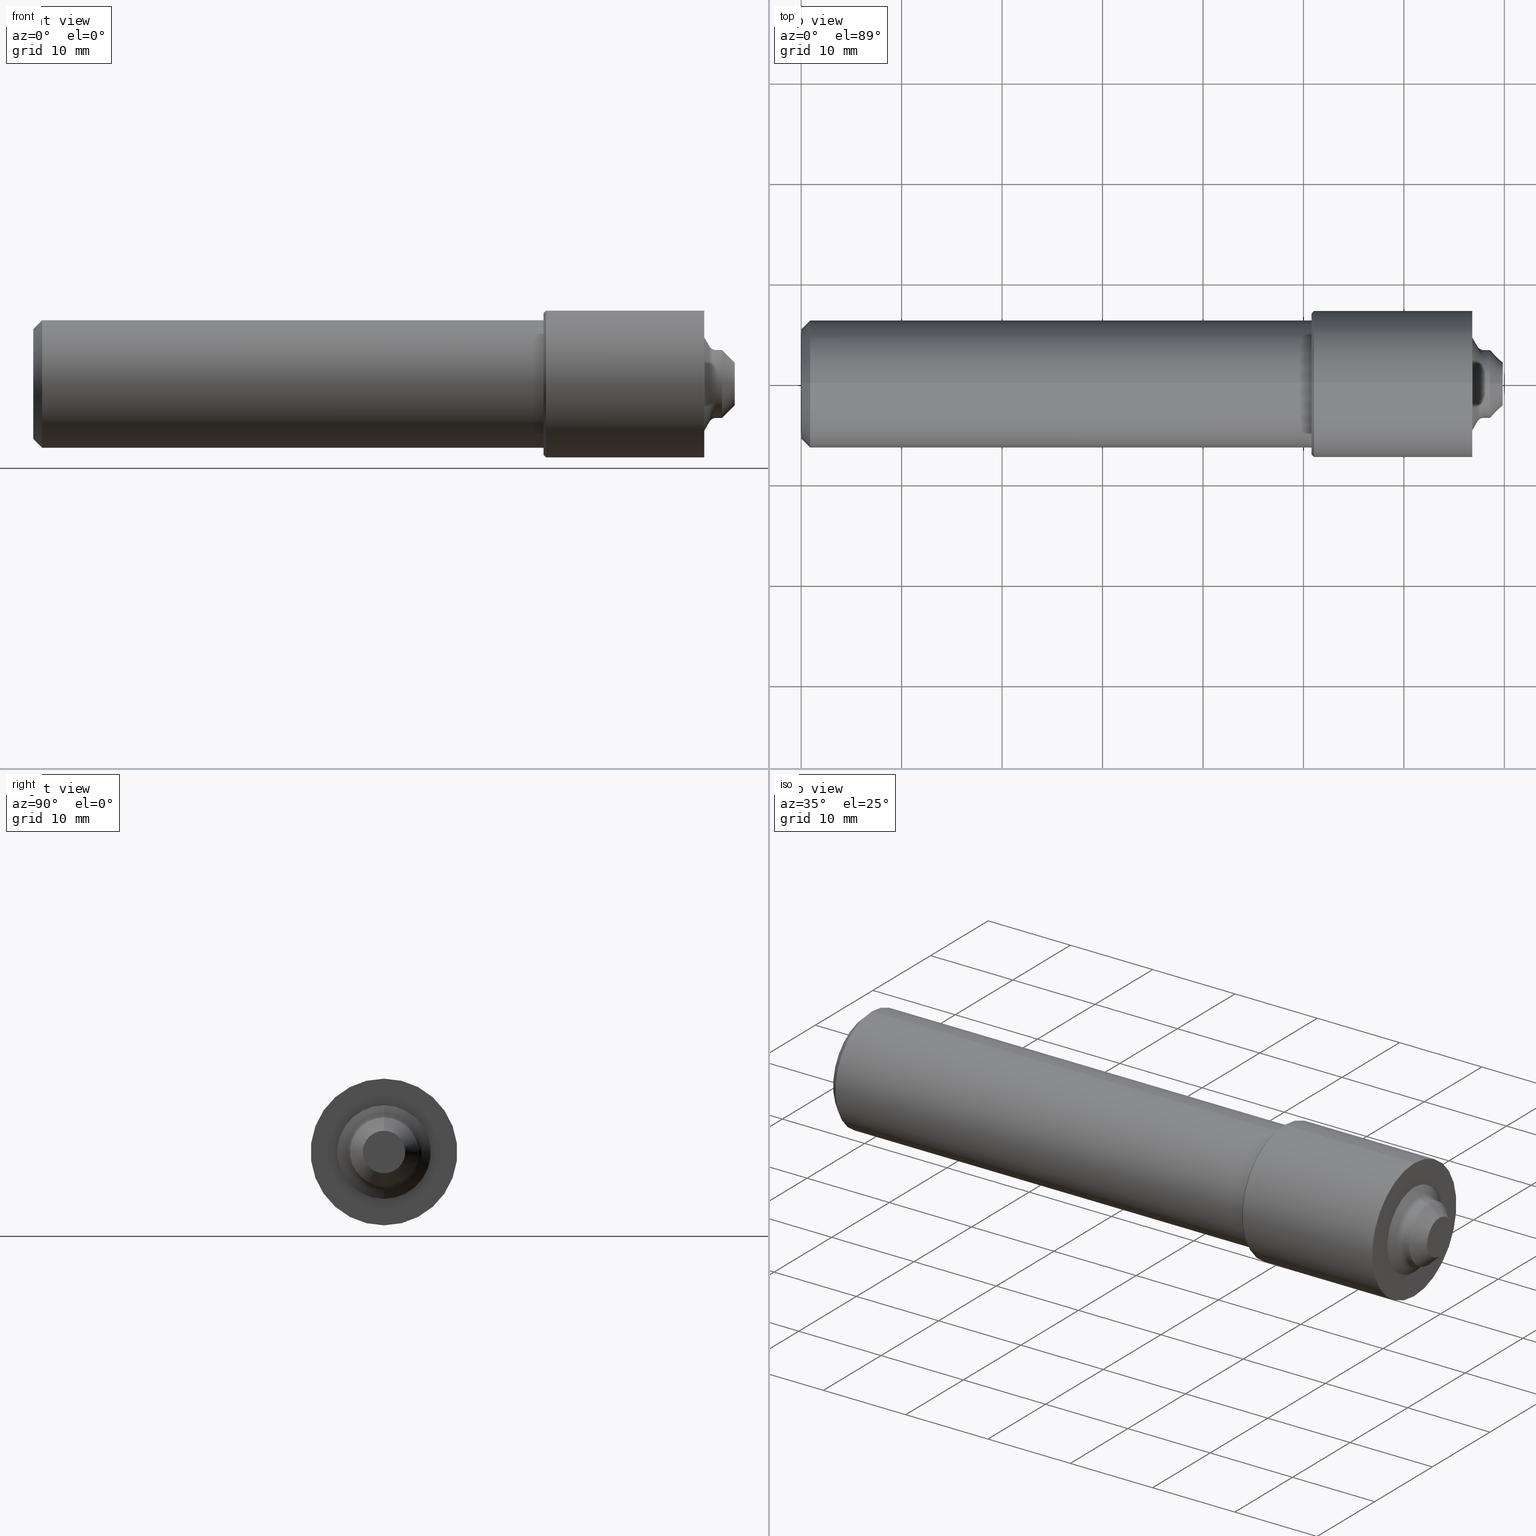
[diagram: canonical four-view strip — front | top / right | iso, engineering-drawing reading convention]
A machine part, canonical four-view strip (front | top / right | iso — engineering-drawing reading convention). The complete STEP part file that produces these views, byte-faithful:
ISO-10303-21;
HEADER;
FILE_DESCRIPTION (( 'STEP AP214' ),
    '1' );
FILE_NAME ('AS5202-01X.STEP',
    '2023-11-10T17:41:54',
    ( '' ),
    ( '' ),
    'SwSTEP 2.0',
    'SolidWorks 2022',
    '' );
FILE_SCHEMA (( 'AUTOMOTIVE_DESIGN' ));
ENDSEC;

DATA;
#1 = FACE_OUTER_BOUND ( 'NONE', #417, .T. ) ;
#2 = ORIENTED_EDGE ( 'NONE', *, *, #241, .F. ) ;
#3 = CARTESIAN_POINT ( 'NONE',  ( 0.000000000000000000, 0.000000000000000000, 0.000000000000000000 ) ) ;
#4 = FACE_OUTER_BOUND ( 'NONE', #8, .T. ) ;
#5 = ORIENTED_EDGE ( 'NONE', *, *, #396, .T. ) ;
#6 = AXIS2_PLACEMENT_3D ( 'NONE', #189, #525, #43 ) ;
#7 = CARTESIAN_POINT ( 'NONE',  ( 0.000000000000000000, 2.847303808017596681E-17, 0.2150000000000001354 ) ) ;
#8 = EDGE_LOOP ( 'NONE', ( #273, #531, #12, #356 ) ) ;
#9 = DIRECTION ( 'NONE',  ( 1.000000000000000000, 0.000000000000000000, 0.000000000000000000 ) ) ;
#10 = EDGE_LOOP ( 'NONE', ( #200, #220, #395, #379 ) ) ;
#11 = FACE_OUTER_BOUND ( 'NONE', #521, .T. ) ;
#12 = ORIENTED_EDGE ( 'NONE', *, *, #45, .F. ) ;
#13 = EDGE_CURVE ( 'NONE', #157, #207, #495, .T. ) ;
#14 = CIRCLE ( 'NONE', #289, 0.2874999999999999778 ) ;
#15 = VERTEX_POINT ( 'NONE', #320 ) ;
#16 = CARTESIAN_POINT ( 'NONE',  ( 0.000000000000000000, 0.000000000000000000, 0.1332500000000000351 ) ) ;
#17 = ORIENTED_EDGE ( 'NONE', *, *, #491, .F. ) ;
#18 = FACE_OUTER_BOUND ( 'NONE', #534, .T. ) ;
#19 = CONICAL_SURFACE ( 'NONE', #291, 0.2874999999999999778, 0.7853981633974500554 ) ;
#20 = VERTEX_POINT ( 'NONE', #494 ) ;
#21 = DIRECTION ( 'NONE',  ( -1.000000000000000000, -0.000000000000000000, -0.000000000000000000 ) ) ;
#22 =( LENGTH_UNIT ( ) NAMED_UNIT ( * ) SI_UNIT ( $, .METRE. ) );
#23 = CARTESIAN_POINT ( 'NONE',  ( 2.675755008833277770, 0.000000000000000000, 0.000000000000000000 ) ) ;
#24 = EDGE_CURVE ( 'NONE', #486, #97, #380, .T. ) ;
#25 = DIRECTION ( 'NONE',  ( 0.000000000000000000, 0.000000000000000000, 1.000000000000000000 ) ) ;
#26 = PRESENTATION_LAYER_ASSIGNMENT (  '', '', ( #471 ) ) ;
#27 = FACE_OUTER_BOUND ( 'NONE', #430, .T. ) ;
#28 = CARTESIAN_POINT ( 'NONE',  ( 2.629999999999999893, 0.000000000000000000, 0.000000000000000000 ) ) ;
#29 = DIRECTION ( 'NONE',  ( -0.000000000000000000, 1.000000000000000000, 1.224646799147353207E-16 ) ) ;
#30 = EDGE_LOOP ( 'NONE', ( #2, #124, #69, #528 ) ) ;
#31 = DIRECTION ( 'NONE',  ( 0.000000000000000000, 0.000000000000000000, 1.000000000000000000 ) ) ;
#32 = ADVANCED_FACE ( 'NONE', ( #27 ), #367, .F. ) ;
#33 = ORIENTED_EDGE ( 'NONE', *, *, #143, .T. ) ;
#34 = CARTESIAN_POINT ( 'NONE',  ( 2.009999999999999787, 0.000000000000000000, 0.000000000000000000 ) ) ;
#35 = DIRECTION ( 'NONE',  ( -1.000000000000000000, -0.000000000000000000, -0.000000000000000000 ) ) ;
#36 = CIRCLE ( 'NONE', #48, 0.2150000000000001354 ) ;
#37 = EDGE_LOOP ( 'NONE', ( #559, #489, #540, #363 ) ) ;
#38 = CONICAL_SURFACE ( 'NONE', #59, 0.08325000000000011557, 0.7853981633974498333 ) ;
#39 = CARTESIAN_POINT ( 'NONE',  ( 2.675755008833277770, 0.000000000000000000, 0.1332500000000000906 ) ) ;
#40 = CARTESIAN_POINT ( 'NONE',  ( 2.000000000000000000, 3.061616997868383018E-17, -0.2500000000000000000 ) ) ;
#41 = MANIFOLD_SOLID_BREP ( 'Body', #350 ) ;
#42 = CARTESIAN_POINT ( 'NONE',  ( 0.000000000000000000, 0.000000000000000000, 0.000000000000000000 ) ) ;
#43 = DIRECTION ( 'NONE',  ( -0.000000000000000000, 0.000000000000000000, 1.000000000000000000 ) ) ;
#44 = DIRECTION ( 'NONE',  ( -1.000000000000000000, -0.000000000000000000, -0.000000000000000000 ) ) ;
#45 = EDGE_CURVE ( 'NONE', #20, #242, #319, .T. ) ;
#46 = PRODUCT_CONTEXT ( 'NONE', #331, 'mechanical' ) ;
#47 = EDGE_LOOP ( 'NONE', ( #446, #256, #401, #95 ) ) ;
#48 = AXIS2_PLACEMENT_3D ( 'NONE', #332, #420, #71 ) ;
#49 = AXIS2_PLACEMENT_3D ( 'NONE', #557, #455, #175 ) ;
#50 = TOROIDAL_SURFACE ( 'NONE', #366, 0.1622500000000000331, 0.02899999999999993902 ) ;
#51 = DIRECTION ( 'NONE',  ( 0.7071067811865462405, 0.000000000000000000, -0.7071067811865486830 ) ) ;
#52 = EDGE_LOOP ( 'NONE', ( #507, #104, #236, #393 ) ) ;
#53 = LINE ( 'NONE', #16, #234 ) ;
#54 = DIRECTION ( 'NONE',  ( -0.4999999999999977240, 1.060575238724908517E-16, -0.8660254037844398178 ) ) ;
#55 = VERTEX_POINT ( 'NONE', #203 ) ;
#56 = ORIENTED_EDGE ( 'NONE', *, *, #416, .F. ) ;
#57 = AXIS2_PLACEMENT_3D ( 'NONE', #295, #558, #387 ) ;
#58 = PRODUCT ( 'AS5202-01X', 'AS5202-01X', '', ( #46 ) ) ;
#59 = AXIS2_PLACEMENT_3D ( 'NONE', #355, #100, #265 ) ;
#60 = VERTEX_POINT ( 'NONE', #543 ) ;
#61 = ADVANCED_FACE ( 'NONE', ( #282 ), #423, .T. ) ;
#62 = SURFACE_SIDE_STYLE ('',( #209 ) ) ;
#63 = PRODUCT_DEFINITION_FORMATION_WITH_SPECIFIED_SOURCE ( 'ANY', '', #58, .NOT_KNOWN. ) ;
#64 = AXIS2_PLACEMENT_3D ( 'NONE', #149, #346, #183 ) ;
#65 = LENGTH_MEASURE_WITH_UNIT ( LENGTH_MEASURE( 0.02539999999999999897 ), #404 );
#66 = DIRECTION ( 'NONE',  ( 1.000000000000000000, 0.000000000000000000, 0.000000000000000000 ) ) ;
#67 = ADVANCED_FACE ( 'NONE', ( #18 ), #204, .T. ) ;
#68 = FACE_OUTER_BOUND ( 'NONE', #354, .T. ) ;
#69 = ORIENTED_EDGE ( 'NONE', *, *, #323, .T. ) ;
#70 = AXIS2_PLACEMENT_3D ( 'NONE', #243, #370, #500 ) ;
#71 = DIRECTION ( 'NONE',  ( 0.000000000000000000, 0.000000000000000000, 1.000000000000000000 ) ) ;
#72 = AXIS2_PLACEMENT_3D ( 'NONE', #454, #66, #408 ) ;
#73 = AXIS2_PLACEMENT_3D ( 'NONE', #335, #466, #251 ) ;
#74 = ORIENTED_EDGE ( 'NONE', *, *, #407, .T. ) ;
#75 = DIMENSIONAL_EXPONENTS ( 1.000000000000000000, 0.000000000000000000, 0.000000000000000000, 0.000000000000000000, 0.000000000000000000, 0.000000000000000000, 0.000000000000000000 ) ;
#76 = DIRECTION ( 'NONE',  ( 0.000000000000000000, 0.000000000000000000, 1.000000000000000000 ) ) ;
#77 = CARTESIAN_POINT ( 'NONE',  ( 0.000000000000000000, 0.000000000000000000, 0.2500000000000000000 ) ) ;
#78 = EDGE_CURVE ( 'NONE', #207, #465, #458, .T. ) ;
#79 =( CONVERSION_BASED_UNIT ( 'INCH', #171 ) LENGTH_UNIT ( ) NAMED_UNIT ( #255 ) );
#80 = VERTEX_POINT ( 'NONE', #83 ) ;
#81 = CARTESIAN_POINT ( 'NONE',  ( 2.700000000000000178, 0.000000000000000000, 0.000000000000000000 ) ) ;
#82 = CARTESIAN_POINT ( 'NONE',  ( 2.009999999999999787, 3.520859547548640070E-17, -0.2874999999999999778 ) ) ;
#83 = CARTESIAN_POINT ( 'NONE',  ( 2.009999999999999787, 0.000000000000000000, 0.2874999999999999778 ) ) ;
#84 = ORIENTED_EDGE ( 'NONE', *, *, #168, .F. ) ;
#85 = DIRECTION ( 'NONE',  ( 0.000000000000000000, 0.000000000000000000, -1.000000000000000000 ) ) ;
#86 = DIRECTION ( 'NONE',  ( -1.000000000000000000, -0.000000000000000000, -0.000000000000000000 ) ) ;
#87 = UNCERTAINTY_MEASURE_WITH_UNIT (LENGTH_MEASURE( 1.000000000000000082E-05 ), #79, 'distance_accuracy_value', 'NONE');
#88 = AXIS2_PLACEMENT_3D ( 'NONE', #261, #21, #160 ) ;
#89 = VECTOR ( 'NONE', #44, 39.37007874015748143 ) ;
#90 = CARTESIAN_POINT ( 'NONE',  ( 0.000000000000000000, 0.000000000000000000, 0.000000000000000000 ) ) ;
#91 = CARTESIAN_POINT ( 'NONE',  ( 2.650640272123529151, 0.000000000000000000, 0.1477500000000001590 ) ) ;
#92 = SURFACE_STYLE_FILL_AREA ( #550 ) ;
#93 = EDGE_CURVE ( 'NONE', #238, #342, #36, .T. ) ;
#94 = CARTESIAN_POINT ( 'NONE',  ( 2.650640272123529151, 1.809415645740216520E-17, -0.1477500000000001590 ) ) ;
#95 = ORIENTED_EDGE ( 'NONE', *, *, #78, .F. ) ;
#96 = DIRECTION ( 'NONE',  ( 0.000000000000000000, 0.000000000000000000, 1.000000000000000000 ) ) ;
#97 = VERTEX_POINT ( 'NONE', #164 ) ;
#98 = CIRCLE ( 'NONE', #312, 0.1477500000000001590 ) ;
#99 = AXIS2_PLACEMENT_3D ( 'NONE', #462, #556, #174 ) ;
#100 = DIRECTION ( 'NONE',  ( -1.000000000000000000, -0.000000000000000000, -0.000000000000000000 ) ) ;
#101 = EDGE_CURVE ( 'NONE', #181, #207, #484, .T. ) ;
#102 = ORIENTED_EDGE ( 'NONE', *, *, #191, .F. ) ;
#103 = FACE_BOUND ( 'NONE', #303, .T. ) ;
#104 = ORIENTED_EDGE ( 'NONE', *, *, #208, .T. ) ;
#105 = DIRECTION ( 'NONE',  ( -1.000000000000000000, -0.000000000000000000, -0.000000000000000000 ) ) ;
#106 = EDGE_LOOP ( 'NONE', ( #400, #398, #140, #17 ) ) ;
#107 = MECHANICAL_DESIGN_GEOMETRIC_PRESENTATION_REPRESENTATION (  '', ( #444 ), #120 ) ;
#108 = VECTOR ( 'NONE', #549, 39.37007874015748854 ) ;
#109 = ORIENTED_EDGE ( 'NONE', *, *, #323, .F. ) ;
#110 = EDGE_CURVE ( 'NONE', #157, #313, #154, .T. ) ;
#111 = CARTESIAN_POINT ( 'NONE',  ( 2.750000000000000000, 0.08325000000000011557, 0.000000000000000000 ) ) ;
#112 = TOROIDAL_SURFACE ( 'NONE', #425, 0.1622500000000000331, 0.02899999999999993902 ) ;
#113 = ADVANCED_FACE ( 'NONE', ( #1 ), #520, .T. ) ;
#114 = DIRECTION ( 'NONE',  ( -1.000000000000000000, -0.000000000000000000, -0.000000000000000000 ) ) ;
#115 = SURFACE_STYLE_USAGE ( .BOTH. , #62 ) ;
#116 = CARTESIAN_POINT ( 'NONE',  ( 2.009999999999999787, 3.520859547548640070E-17, 0.2874999999999999778 ) ) ;
#117 = ORIENTED_EDGE ( 'NONE', *, *, #278, .F. ) ;
#118 = DIRECTION ( 'NONE',  ( -0.7071067811865464625, 8.659560562354947649E-17, -0.7071067811865486830 ) ) ;
#119 = DIRECTION ( 'NONE',  ( -1.000000000000000000, -0.000000000000000000, -0.000000000000000000 ) ) ;
#120 =( GEOMETRIC_REPRESENTATION_CONTEXT ( 3 ) GLOBAL_UNCERTAINTY_ASSIGNED_CONTEXT ( ( #228 ) ) GLOBAL_UNIT_ASSIGNED_CONTEXT ( ( #280, #406, #537 ) ) REPRESENTATION_CONTEXT ( 'NONE', 'WORKASPACE' ) );
#121 = CARTESIAN_POINT ( 'NONE',  ( 2.000000000000000000, 0.000000000000000000, 0.000000000000000000 ) ) ;
#122 = CIRCLE ( 'NONE', #460, 0.08325000000000011557 ) ;
#123 = CIRCLE ( 'NONE', #99, 0.2150000000000001354 ) ;
#124 = ORIENTED_EDGE ( 'NONE', *, *, #135, .F. ) ;
#125 = DIRECTION ( 'NONE',  ( 0.000000000000000000, 0.000000000000000000, 1.000000000000000000 ) ) ;
#126 = FACE_OUTER_BOUND ( 'NONE', #47, .T. ) ;
#127 =( NAMED_UNIT ( * ) PLANE_ANGLE_UNIT ( ) SI_UNIT ( $, .RADIAN. ) );
#128 = ORIENTED_EDGE ( 'NONE', *, *, #294, .F. ) ;
#129 = CARTESIAN_POINT ( 'NONE',  ( 2.650640272123529151, 0.000000000000000000, 0.000000000000000000 ) ) ;
#130 = CARTESIAN_POINT ( 'NONE',  ( 2.700000000000000178, 0.000000000000000000, 0.000000000000000000 ) ) ;
#131 = ORIENTED_EDGE ( 'NONE', *, *, #208, .F. ) ;
#132 = DIRECTION ( 'NONE',  ( -1.000000000000000000, -0.000000000000000000, -0.000000000000000000 ) ) ;
#133 = DIRECTION ( 'NONE',  ( -1.000000000000000000, -0.000000000000000000, -0.000000000000000000 ) ) ;
#134 = DIRECTION ( 'NONE',  ( -1.000000000000000000, -0.000000000000000000, -0.000000000000000000 ) ) ;
#135 = EDGE_CURVE ( 'NONE', #15, #55, #523, .T. ) ;
#136 = VERTEX_POINT ( 'NONE', #82 ) ;
#137 = AXIS2_PLACEMENT_3D ( 'NONE', #217, #414, #385 ) ;
#138 = CARTESIAN_POINT ( 'NONE',  ( 2.675755008833277770, 0.000000000000000000, 0.000000000000000000 ) ) ;
#139 = LINE ( 'NONE', #91, #161 ) ;
#140 = ORIENTED_EDGE ( 'NONE', *, *, #78, .T. ) ;
#141 = DIRECTION ( 'NONE',  ( 0.7071067811865489050, 0.000000000000000000, -0.7071067811865461294 ) ) ;
#142 = VERTEX_POINT ( 'NONE', #411 ) ;
#143 = EDGE_CURVE ( 'NONE', #142, #97, #504, .T. ) ;
#144 = DIRECTION ( 'NONE',  ( 0.7071067811865489050, 8.659560562354915602E-17, 0.7071067811865461294 ) ) ;
#145 = EDGE_LOOP ( 'NONE', ( #478, #358 ) ) ;
#146 = PRESENTATION_LAYER_ASSIGNMENT (  '', '', ( #444 ) ) ;
#147 = AXIS2_PLACEMENT_3D ( 'NONE', #434, #9, #272 ) ;
#148 = AXIS2_PLACEMENT_3D ( 'NONE', #3, #373, #125 ) ;
#149 = CARTESIAN_POINT ( 'NONE',  ( 2.650640272123529151, 0.000000000000000000, 0.000000000000000000 ) ) ;
#150 = ORIENTED_EDGE ( 'NONE', *, *, #316, .F. ) ;
#151 = ORIENTED_EDGE ( 'NONE', *, *, #529, .F. ) ;
#152 = DIRECTION ( 'NONE',  ( 0.000000000000000000, 0.000000000000000000, 1.000000000000000000 ) ) ;
#153 = ADVANCED_FACE ( 'NONE', ( #254 ), #551, .T. ) ;
#154 = CIRCLE ( 'NONE', #360, 0.1332500000000000073 ) ;
#155 = APPLICATION_CONTEXT ( 'automotive_design' ) ;
#156 = CONICAL_SURFACE ( 'NONE', #371, 0.08325000000000011557, 0.7853981633974498333 ) ;
#157 = VERTEX_POINT ( 'NONE', #468 ) ;
#158 = ORIENTED_EDGE ( 'NONE', *, *, #248, .F. ) ;
#159 = ORIENTED_EDGE ( 'NONE', *, *, #479, .F. ) ;
#160 = DIRECTION ( 'NONE',  ( 0.000000000000000000, 0.000000000000000000, 1.000000000000000000 ) ) ;
#161 = VECTOR ( 'NONE', #474, 39.37007874015748143 ) ;
#162 = DIRECTION ( 'NONE',  ( 0.000000000000000000, 0.000000000000000000, -1.000000000000000000 ) ) ;
#163 = LINE ( 'NONE', #116, #108 ) ;
#164 = CARTESIAN_POINT ( 'NONE',  ( 0.03500000000000000333, 0.000000000000000000, 0.2500000000000000000 ) ) ;
#165 = DIRECTION ( 'NONE',  ( 0.000000000000000000, 0.000000000000000000, 1.000000000000000000 ) ) ;
#166 = CARTESIAN_POINT ( 'NONE',  ( 2.629999999999999893, 2.247226876435393398E-17, -0.1834999999999999964 ) ) ;
#167 = CARTESIAN_POINT ( 'NONE',  ( 0.000000000000000000, 0.000000000000000000, 0.000000000000000000 ) ) ;
#168 = EDGE_CURVE ( 'NONE', #465, #207, #351, .T. ) ;
#169 = DIRECTION ( 'NONE',  ( -1.000000000000000000, -0.000000000000000000, -0.000000000000000000 ) ) ;
#170 = CARTESIAN_POINT ( 'NONE',  ( 2.650640272123529151, 1.809415645740214979E-17, -0.1477500000000000757 ) ) ;
#171 = LENGTH_MEASURE_WITH_UNIT ( LENGTH_MEASURE( 0.02539999999999999897 ), #22 );
#172 = CIRCLE ( 'NONE', #271, 0.02899999999999993208 ) ;
#173 = EDGE_LOOP ( 'NONE', ( #322, #102 ) ) ;
#174 = DIRECTION ( 'NONE',  ( 0.000000000000000000, 0.000000000000000000, 1.000000000000000000 ) ) ;
#175 = DIRECTION ( 'NONE',  ( 0.000000000000000000, 0.000000000000000000, 1.000000000000000000 ) ) ;
#176 = APPLICATION_PROTOCOL_DEFINITION ( 'draft international standard', 'automotive_design', 1998, #155 ) ;
#177 = ORIENTED_EDGE ( 'NONE', *, *, #101, .F. ) ;
#178 = DIRECTION ( 'NONE',  ( 0.000000000000000000, -1.000000000000000000, 0.000000000000000000 ) ) ;
#179 = CARTESIAN_POINT ( 'NONE',  ( 2.650640272123529151, 0.000000000000000000, 0.000000000000000000 ) ) ;
#180 = EDGE_CURVE ( 'NONE', #60, #433, #492, .T. ) ;
#181 = VERTEX_POINT ( 'NONE', #170 ) ;
#182 = FACE_OUTER_BOUND ( 'NONE', #325, .T. ) ;
#183 = DIRECTION ( 'NONE',  ( 0.000000000000000000, 0.000000000000000000, 1.000000000000000000 ) ) ;
#184 = VECTOR ( 'NONE', #284, 39.37007874015748143 ) ;
#185 =( GEOMETRIC_REPRESENTATION_CONTEXT ( 3 ) GLOBAL_UNCERTAINTY_ASSIGNED_CONTEXT ( ( #87 ) ) GLOBAL_UNIT_ASSIGNED_CONTEXT ( ( #79, #127, #432 ) ) REPRESENTATION_CONTEXT ( 'NONE', 'WORKASPACE' ) );
#186 = AXIS2_PLACEMENT_3D ( 'NONE', #129, #35, #547 ) ;
#187 = VERTEX_POINT ( 'NONE', #369 ) ;
#188 = LENGTH_MEASURE_WITH_UNIT ( LENGTH_MEASURE( 0.02539999999999999897 ), #441 );
#189 = CARTESIAN_POINT ( 'NONE',  ( 2.629999999999999893, 0.2874999999999999778, 0.000000000000000000 ) ) ;
#190 = ORIENTED_EDGE ( 'NONE', *, *, #24, .F. ) ;
#191 = EDGE_CURVE ( 'NONE', #347, #142, #326, .T. ) ;
#192 = LINE ( 'NONE', #527, #277 ) ;
#193 = PRODUCT_DEFINITION_SHAPE ( 'NONE', 'NONE',  #554 ) ;
#194 = ORIENTED_EDGE ( 'NONE', *, *, #135, .T. ) ;
#195 = LINE ( 'NONE', #315, #263 ) ;
#196 = ORIENTED_EDGE ( 'NONE', *, *, #328, .F. ) ;
#197 = AXIS2_PLACEMENT_3D ( 'NONE', #246, #403, #162 ) ;
#198 = VECTOR ( 'NONE', #119, 39.37007874015748143 ) ;
#199 = CIRCLE ( 'NONE', #137, 0.1477500000000001590 ) ;
#200 = ORIENTED_EDGE ( 'NONE', *, *, #375, .F. ) ;
#201 = ADVANCED_FACE ( 'NONE', ( #499 ), #156, .T. ) ;
#202 = ORIENTED_EDGE ( 'NONE', *, *, #353, .T. ) ;
#203 = CARTESIAN_POINT ( 'NONE',  ( 2.000000000000000000, 3.459627207591272545E-17, 0.2775000000000000244 ) ) ;
#204 = CONICAL_SURFACE ( 'NONE', #72, 0.2500000000000000000, 0.7853981633974463916 ) ;
#205 = AXIS2_PLACEMENT_3D ( 'NONE', #429, #267, #359 ) ;
#206 = AXIS2_PLACEMENT_3D ( 'NONE', #512, #345, #76 ) ;
#207 = VERTEX_POINT ( 'NONE', #297 ) ;
#208 = EDGE_CURVE ( 'NONE', #187, #442, #340, .T. ) ;
#209 = SURFACE_STYLE_FILL_AREA ( #497 ) ;
#210 = DIRECTION ( 'NONE',  ( 0.000000000000000000, 0.000000000000000000, 1.000000000000000000 ) ) ;
#211 = DIRECTION ( 'NONE',  ( -1.000000000000000000, -0.000000000000000000, -0.000000000000000000 ) ) ;
#212 = AXIS2_PLACEMENT_3D ( 'NONE', #111, #279, #448 ) ;
#213 = CARTESIAN_POINT ( 'NONE',  ( 2.750000000000000000, 0.000000000000000000, 0.000000000000000000 ) ) ;
#214 = DIRECTION ( 'NONE',  ( 0.000000000000000000, 0.000000000000000000, -1.000000000000000000 ) ) ;
#215 = ADVANCED_FACE ( 'NONE', ( #68 ), #286, .T. ) ;
#216 = DIRECTION ( 'NONE',  ( -1.000000000000000000, -0.000000000000000000, -0.000000000000000000 ) ) ;
#217 = CARTESIAN_POINT ( 'NONE',  ( 2.650640272123529151, 0.000000000000000000, 0.000000000000000000 ) ) ;
#218 = CARTESIAN_POINT ( 'NONE',  ( 2.629999999999999893, 0.000000000000000000, 0.000000000000000000 ) ) ;
#219 = PRESENTATION_STYLE_ASSIGNMENT (( #421 ) ) ;
#220 = ORIENTED_EDGE ( 'NONE', *, *, #436, .T. ) ;
#221 = DIRECTION ( 'NONE',  ( 0.000000000000000000, 0.000000000000000000, 1.000000000000000000 ) ) ;
#222 = CARTESIAN_POINT ( 'NONE',  ( 0.000000000000000000, 0.000000000000000000, 0.000000000000000000 ) ) ;
#223 = AXIS2_PLACEMENT_3D ( 'NONE', #90, #410, #288 ) ;
#224 = EDGE_CURVE ( 'NONE', #442, #313, #247, .T. ) ;
#225 = CARTESIAN_POINT ( 'NONE',  ( 2.675755008833277770, 0.000000000000000000, 0.000000000000000000 ) ) ;
#226 = DIRECTION ( 'NONE',  ( -1.000000000000000000, -0.000000000000000000, -0.000000000000000000 ) ) ;
#227 = DIMENSIONAL_EXPONENTS ( 1.000000000000000000, 0.000000000000000000, 0.000000000000000000, 0.000000000000000000, 0.000000000000000000, 0.000000000000000000, 0.000000000000000000 ) ;
#228 = UNCERTAINTY_MEASURE_WITH_UNIT (LENGTH_MEASURE( 1.000000000000000082E-05 ), #280, 'distance_accuracy_value', 'NONE');
#229 = DIRECTION ( 'NONE',  ( 1.000000000000000000, 0.000000000000000000, 0.000000000000000000 ) ) ;
#230 = DIRECTION ( 'NONE',  ( -1.000000000000000000, -0.000000000000000000, -0.000000000000000000 ) ) ;
#231 = CARTESIAN_POINT ( 'NONE',  ( 2.700000000000000178, 0.000000000000000000, 0.1332500000000000073 ) ) ;
#232 = AXIS2_PLACEMENT_3D ( 'NONE', #392, #488, #439 ) ;
#233 = EDGE_LOOP ( 'NONE', ( #117, #266, #438, #196 ) ) ;
#234 = VECTOR ( 'NONE', #105, 39.37007874015748143 ) ;
#235 = FACE_OUTER_BOUND ( 'NONE', #145, .T. ) ;
#236 = ORIENTED_EDGE ( 'NONE', *, *, #224, .T. ) ;
#237 = DIRECTION ( 'NONE',  ( 0.000000000000000000, 0.000000000000000000, 1.000000000000000000 ) ) ;
#238 = VERTEX_POINT ( 'NONE', #383 ) ;
#239 = ADVANCED_BREP_SHAPE_REPRESENTATION ( 'AS5202-01X', ( #41, #57 ), #384 ) ;
#240 = ORIENTED_EDGE ( 'NONE', *, *, #168, .T. ) ;
#241 = EDGE_CURVE ( 'NONE', #55, #80, #163, .T. ) ;
#242 = VERTEX_POINT ( 'NONE', #166 ) ;
#243 = CARTESIAN_POINT ( 'NONE',  ( 2.629999999999999893, 0.000000000000000000, 0.000000000000000000 ) ) ;
#244 = ADVANCED_FACE ( 'NONE', ( #330 ), #374, .T. ) ;
#245 = PRESENTATION_STYLE_ASSIGNMENT (( #115 ) ) ;
#246 = CARTESIAN_POINT ( 'NONE',  ( 0.03500000000000000333, 0.000000000000000000, 0.000000000000000000 ) ) ;
#247 = LINE ( 'NONE', #511, #553 ) ;
#248 = EDGE_CURVE ( 'NONE', #442, #187, #122, .T. ) ;
#249 = CYLINDRICAL_SURFACE ( 'NONE', #223, 0.1332500000000000351 ) ;
#250 = AXIS2_PLACEMENT_3D ( 'NONE', #28, #513, #210 ) ;
#251 = DIRECTION ( 'NONE',  ( 0.000000000000000000, 0.000000000000000000, 1.000000000000000000 ) ) ;
#252 = AXIS2_PLACEMENT_3D ( 'NONE', #222, #519, #96 ) ;
#253 = FACE_OUTER_BOUND ( 'NONE', #391, .T. ) ;
#254 = FACE_OUTER_BOUND ( 'NONE', #10, .T. ) ;
#255 = DIMENSIONAL_EXPONENTS ( 1.000000000000000000, 0.000000000000000000, 0.000000000000000000, 0.000000000000000000, 0.000000000000000000, 0.000000000000000000, 0.000000000000000000 ) ;
#256 = ORIENTED_EDGE ( 'NONE', *, *, #110, .T. ) ;
#257 = DIRECTION ( 'NONE',  ( -1.000000000000000000, -0.000000000000000000, -0.000000000000000000 ) ) ;
#258 = DIRECTION ( 'NONE',  ( -1.000000000000000000, -0.000000000000000000, -0.000000000000000000 ) ) ;
#259 = EDGE_CURVE ( 'NONE', #433, #60, #498, .T. ) ;
#260 = VERTEX_POINT ( 'NONE', #344 ) ;
#261 = CARTESIAN_POINT ( 'NONE',  ( 2.000000000000000000, 0.000000000000000000, 0.000000000000000000 ) ) ;
#262 = AXIS2_PLACEMENT_3D ( 'NONE', #545, #86, #31 ) ;
#263 = VECTOR ( 'NONE', #51, 39.37007874015748854 ) ;
#264 = CARTESIAN_POINT ( 'NONE',  ( 2.629999999999999893, 0.000000000000000000, 0.000000000000000000 ) ) ;
#265 = DIRECTION ( 'NONE',  ( 0.000000000000000000, 0.000000000000000000, 1.000000000000000000 ) ) ;
#266 = ORIENTED_EDGE ( 'NONE', *, *, #180, .T. ) ;
#267 = DIRECTION ( 'NONE',  ( -1.000000000000000000, -0.000000000000000000, -0.000000000000000000 ) ) ;
#268 = ADVANCED_FACE ( 'NONE', ( #126 ), #419, .T. ) ;
#269 = VECTOR ( 'NONE', #230, 39.37007874015748143 ) ;
#270 = EDGE_LOOP ( 'NONE', ( #310, #470, #306, #109 ) ) ;
#271 = AXIS2_PLACEMENT_3D ( 'NONE', #418, #178, #85 ) ;
#272 = DIRECTION ( 'NONE',  ( 0.000000000000000000, 0.000000000000000000, -1.000000000000000000 ) ) ;
#273 = ORIENTED_EDGE ( 'NONE', *, *, #294, .T. ) ;
#274 = ORIENTED_EDGE ( 'NONE', *, *, #353, .F. ) ;
#275 = ADVANCED_FACE ( 'NONE', ( #532 ), #38, .T. ) ;
#276 = ORIENTED_EDGE ( 'NONE', *, *, #316, .T. ) ;
#277 = VECTOR ( 'NONE', #141, 39.37007874015748143 ) ;
#278 = EDGE_CURVE ( 'NONE', #60, #136, #542, .T. ) ;
#279 = DIRECTION ( 'NONE',  ( -1.000000000000000000, 0.000000000000000000, -0.000000000000000000 ) ) ;
#280 =( CONVERSION_BASED_UNIT ( 'INCH', #65 ) LENGTH_UNIT ( ) NAMED_UNIT ( #227 ) );
#281 = CIRCLE ( 'NONE', #327, 0.1834999999999999964 ) ;
#282 = FACE_OUTER_BOUND ( 'NONE', #37, .T. ) ;
#283 = DIRECTION ( 'NONE',  ( 0.000000000000000000, 0.000000000000000000, 1.000000000000000000 ) ) ;
#284 = DIRECTION ( 'NONE',  ( -1.000000000000000000, -0.000000000000000000, -0.000000000000000000 ) ) ;
#285 = ADVANCED_FACE ( 'NONE', ( #4 ), #399, .T. ) ;
#286 = CYLINDRICAL_SURFACE ( 'NONE', #73, 0.2500000000000000000 ) ;
#287 = EDGE_LOOP ( 'NONE', ( #481, #362 ) ) ;
#288 = DIRECTION ( 'NONE',  ( 0.000000000000000000, 0.000000000000000000, 1.000000000000000000 ) ) ;
#289 = AXIS2_PLACEMENT_3D ( 'NONE', #311, #226, #237 ) ;
#290 = DIRECTION ( 'NONE',  ( 0.000000000000000000, 0.000000000000000000, 1.000000000000000000 ) ) ;
#291 = AXIS2_PLACEMENT_3D ( 'NONE', #34, #424, #381 ) ;
#292 = DIRECTION ( 'NONE',  ( -1.000000000000000000, -0.000000000000000000, -0.000000000000000000 ) ) ;
#293 = DIRECTION ( 'NONE',  ( -1.000000000000000000, -0.000000000000000000, -0.000000000000000000 ) ) ;
#294 = EDGE_CURVE ( 'NONE', #260, #181, #98, .T. ) ;
#295 = CARTESIAN_POINT ( 'NONE',  ( 0.000000000000000000, 0.000000000000000000, 0.000000000000000000 ) ) ;
#296 = CARTESIAN_POINT ( 'NONE',  ( 2.629999999999999893, 0.000000000000000000, 0.2874999999999999778 ) ) ;
#297 = CARTESIAN_POINT ( 'NONE',  ( 2.675755008833277770, 1.631841859863849466E-17, -0.1332500000000000906 ) ) ;
#298 = DIRECTION ( 'NONE',  ( 0.000000000000000000, 0.000000000000000000, 1.000000000000000000 ) ) ;
#299 = ORIENTED_EDGE ( 'NONE', *, *, #546, .F. ) ;
#300 = DIRECTION ( 'NONE',  ( 0.000000000000000000, 0.000000000000000000, 1.000000000000000000 ) ) ;
#301 = FACE_OUTER_BOUND ( 'NONE', #30, .T. ) ;
#302 = CONICAL_SURFACE ( 'NONE', #147, 0.2874999999999999778, 0.7853981633974500554 ) ;
#303 = EDGE_LOOP ( 'NONE', ( #526, #74 ) ) ;
#304 = FACE_OUTER_BOUND ( 'NONE', #270, .T. ) ;
#305 = DIRECTION ( 'NONE',  ( -1.000000000000000000, -0.000000000000000000, -0.000000000000000000 ) ) ;
#306 = ORIENTED_EDGE ( 'NONE', *, *, #541, .T. ) ;
#307 = EDGE_CURVE ( 'NONE', #238, #486, #192, .T. ) ;
#308 = LINE ( 'NONE', #397, #269 ) ;
#309 = SURFACE_SIDE_STYLE ('',( #92 ) ) ;
#310 = ORIENTED_EDGE ( 'NONE', *, *, #535, .F. ) ;
#311 = CARTESIAN_POINT ( 'NONE',  ( 2.009999999999999787, 0.000000000000000000, 0.000000000000000000 ) ) ;
#312 = AXIS2_PLACEMENT_3D ( 'NONE', #179, #133, #349 ) ;
#313 = VERTEX_POINT ( 'NONE', #231 ) ;
#314 =( NAMED_UNIT ( * ) PLANE_ANGLE_UNIT ( ) SI_UNIT ( $, .RADIAN. ) );
#315 = CARTESIAN_POINT ( 'NONE',  ( 2.009999999999999787, 0.000000000000000000, -0.2874999999999999778 ) ) ;
#316 = EDGE_CURVE ( 'NONE', #97, #486, #382, .T. ) ;
#317 = ORIENTED_EDGE ( 'NONE', *, *, #248, .T. ) ;
#318 = ORIENTED_EDGE ( 'NONE', *, *, #338, .T. ) ;
#319 = CIRCLE ( 'NONE', #70, 0.1834999999999999964 ) ;
#320 = CARTESIAN_POINT ( 'NONE',  ( 2.000000000000000000, 0.000000000000000000, -0.2775000000000000244 ) ) ;
#321 = COLOUR_RGB ( '',0.7529411764705882248, 0.7529411764705882248, 0.7529411764705882248 ) ;
#322 = ORIENTED_EDGE ( 'NONE', *, *, #338, .F. ) ;
#323 = EDGE_CURVE ( 'NONE', #15, #136, #195, .T. ) ;
#324 = EDGE_LOOP ( 'NONE', ( #490, #336, #376, #159 ) ) ;
#325 = EDGE_LOOP ( 'NONE', ( #177, #128, #422, #240 ) ) ;
#326 = CIRCLE ( 'NONE', #88, 0.2500000000000000000 ) ;
#327 = AXIS2_PLACEMENT_3D ( 'NONE', #264, #305, #477 ) ;
#328 = EDGE_CURVE ( 'NONE', #136, #80, #14, .T. ) ;
#329 = DIRECTION ( 'NONE',  ( -1.000000000000000000, -0.000000000000000000, -0.000000000000000000 ) ) ;
#330 = FACE_OUTER_BOUND ( 'NONE', #324, .T. ) ;
#331 = APPLICATION_CONTEXT ( 'automotive_design' ) ;
#332 = CARTESIAN_POINT ( 'NONE',  ( 0.000000000000000000, 0.000000000000000000, 0.000000000000000000 ) ) ;
#333 = PRODUCT_DEFINITION_CONTEXT ( 'detailed design', #155, 'design' ) ;
#334 = CARTESIAN_POINT ( 'NONE',  ( 0.000000000000000000, 0.000000000000000000, 0.2874999999999999778 ) ) ;
#335 = CARTESIAN_POINT ( 'NONE',  ( 0.000000000000000000, 0.000000000000000000, 0.000000000000000000 ) ) ;
#336 = ORIENTED_EDGE ( 'NONE', *, *, #278, .T. ) ;
#337 = MECHANICAL_DESIGN_GEOMETRIC_PRESENTATION_REPRESENTATION (  '', ( #471 ), #185 ) ;
#338 = EDGE_CURVE ( 'NONE', #142, #347, #508, .T. ) ;
#339 = AXIS2_PLACEMENT_3D ( 'NONE', #412, #29, #515 ) ;
#340 = CIRCLE ( 'NONE', #49, 0.08325000000000011557 ) ;
#341 = DIRECTION ( 'NONE',  ( 0.000000000000000000, 0.000000000000000000, 1.000000000000000000 ) ) ;
#342 = VERTEX_POINT ( 'NONE', #7 ) ;
#343 = FACE_OUTER_BOUND ( 'NONE', #233, .T. ) ;
#344 = CARTESIAN_POINT ( 'NONE',  ( 2.650640272123529151, 0.000000000000000000, 0.1477500000000000757 ) ) ;
#345 = DIRECTION ( 'NONE',  ( -1.000000000000000000, -0.000000000000000000, -0.000000000000000000 ) ) ;
#346 = DIRECTION ( 'NONE',  ( -1.000000000000000000, -0.000000000000000000, -0.000000000000000000 ) ) ;
#347 = VERTEX_POINT ( 'NONE', #40 ) ;
#348 = DIRECTION ( 'NONE',  ( 0.000000000000000000, 0.000000000000000000, 1.000000000000000000 ) ) ;
#349 = DIRECTION ( 'NONE',  ( 0.000000000000000000, 0.000000000000000000, 1.000000000000000000 ) ) ;
#350 = CLOSED_SHELL ( 'NONE', ( #67, #215, #496, #244, #285, #469, #514, #201, #32, #275, #268, #427, #153, #365, #461, #390, #368, #113, #61, #447 ) ) ;
#351 = CIRCLE ( 'NONE', #262, 0.1332500000000000906 ) ;
#352 = AXIS2_PLACEMENT_3D ( 'NONE', #463, #258, #25 ) ;
#353 = EDGE_CURVE ( 'NONE', #347, #486, #308, .T. ) ;
#354 = EDGE_LOOP ( 'NONE', ( #318, #202, #150, #413 ) ) ;
#355 = CARTESIAN_POINT ( 'NONE',  ( 2.750000000000000000, 0.000000000000000000, 0.000000000000000000 ) ) ;
#356 = ORIENTED_EDGE ( 'NONE', *, *, #402, .F. ) ;
#357 = CARTESIAN_POINT ( 'NONE',  ( 0.03500000000000000333, 3.061616997868383018E-17, 0.2500000000000000000 ) ) ;
#358 = ORIENTED_EDGE ( 'NONE', *, *, #180, .F. ) ;
#359 = DIRECTION ( 'NONE',  ( 0.000000000000000000, 0.000000000000000000, 1.000000000000000000 ) ) ;
#360 = AXIS2_PLACEMENT_3D ( 'NONE', #130, #216, #298 ) ;
#361 = CIRCLE ( 'NONE', #493, 0.1332500000000000073 ) ;
#362 = ORIENTED_EDGE ( 'NONE', *, *, #529, .T. ) ;
#363 = ORIENTED_EDGE ( 'NONE', *, *, #24, .T. ) ;
#364 = CARTESIAN_POINT ( 'NONE',  ( 0.03500000000000000333, 0.000000000000000000, 0.000000000000000000 ) ) ;
#365 = ADVANCED_FACE ( 'NONE', ( #235, #103 ), #426, .F. ) ;
#366 = AXIS2_PLACEMENT_3D ( 'NONE', #138, #560, #165 ) ;
#367 = PLANE ( 'NONE',  #212 ) ;
#368 = ADVANCED_FACE ( 'NONE', ( #530, #11 ), #480, .F. ) ;
#369 = CARTESIAN_POINT ( 'NONE',  ( 2.750000000000000000, 1.325680160077010609E-17, -0.08325000000000011557 ) ) ;
#370 = DIRECTION ( 'NONE',  ( -1.000000000000000000, -0.000000000000000000, -0.000000000000000000 ) ) ;
#371 = AXIS2_PLACEMENT_3D ( 'NONE', #213, #114, #283 ) ;
#372 = DIRECTION ( 'NONE',  ( -1.000000000000000000, -0.000000000000000000, -0.000000000000000000 ) ) ;
#373 = DIRECTION ( 'NONE',  ( -1.000000000000000000, -0.000000000000000000, -0.000000000000000000 ) ) ;
#374 = CYLINDRICAL_SURFACE ( 'NONE', #352, 0.2874999999999999778 ) ;
#375 = EDGE_CURVE ( 'NONE', #181, #242, #561, .T. ) ;
#376 = ORIENTED_EDGE ( 'NONE', *, *, #541, .F. ) ;
#377 = FACE_OUTER_BOUND ( 'NONE', #287, .T. ) ;
#378 = DIRECTION ( 'NONE',  ( -1.000000000000000000, -0.000000000000000000, -0.000000000000000000 ) ) ;
#379 = ORIENTED_EDGE ( 'NONE', *, *, #407, .F. ) ;
#380 = CIRCLE ( 'NONE', #522, 0.2500000000000000000 ) ;
#381 = DIRECTION ( 'NONE',  ( 0.000000000000000000, 0.000000000000000000, -1.000000000000000000 ) ) ;
#382 = CIRCLE ( 'NONE', #205, 0.2500000000000000000 ) ;
#383 = CARTESIAN_POINT ( 'NONE',  ( 0.000000000000000000, 0.000000000000000000, -0.2150000000000001354 ) ) ;
#384 =( GEOMETRIC_REPRESENTATION_CONTEXT ( 3 ) GLOBAL_UNCERTAINTY_ASSIGNED_CONTEXT ( ( #516 ) ) GLOBAL_UNIT_ASSIGNED_CONTEXT ( ( #482, #314, #487 ) ) REPRESENTATION_CONTEXT ( 'NONE', 'WORKASPACE' ) );
#385 = DIRECTION ( 'NONE',  ( 0.000000000000000000, 0.000000000000000000, 1.000000000000000000 ) ) ;
#386 = DIRECTION ( 'NONE',  ( 0.000000000000000000, 0.000000000000000000, -1.000000000000000000 ) ) ;
#387 = DIRECTION ( 'NONE',  ( 1.000000000000000000, 0.000000000000000000, 0.000000000000000000 ) ) ;
#388 = CYLINDRICAL_SURFACE ( 'NONE', #148, 0.2874999999999999778 ) ;
#389 = LINE ( 'NONE', #357, #453 ) ;
#390 = ADVANCED_FACE ( 'NONE', ( #301 ), #302, .T. ) ;
#391 = EDGE_LOOP ( 'NONE', ( #440, #456, #84, #299 ) ) ;
#392 = CARTESIAN_POINT ( 'NONE',  ( 2.000000000000000000, 0.000000000000000000, 0.000000000000000000 ) ) ;
#393 = ORIENTED_EDGE ( 'NONE', *, *, #110, .F. ) ;
#394 = DIRECTION ( 'NONE',  ( 1.000000000000000000, 0.000000000000000000, 0.000000000000000000 ) ) ;
#395 = ORIENTED_EDGE ( 'NONE', *, *, #402, .T. ) ;
#396 = EDGE_CURVE ( 'NONE', #342, #97, #389, .T. ) ;
#397 = CARTESIAN_POINT ( 'NONE',  ( 0.000000000000000000, 3.061616997868383018E-17, -0.2500000000000000000 ) ) ;
#398 = ORIENTED_EDGE ( 'NONE', *, *, #101, .T. ) ;
#399 = CONICAL_SURFACE ( 'NONE', #64, 0.1477500000000001590, 1.047197551196600296 ) ;
#400 = ORIENTED_EDGE ( 'NONE', *, *, #436, .F. ) ;
#401 = ORIENTED_EDGE ( 'NONE', *, *, #546, .T. ) ;
#402 = EDGE_CURVE ( 'NONE', #260, #20, #139, .T. ) ;
#403 = DIRECTION ( 'NONE',  ( 1.000000000000000000, 0.000000000000000000, 0.000000000000000000 ) ) ;
#404 =( LENGTH_UNIT ( ) NAMED_UNIT ( * ) SI_UNIT ( $, .METRE. ) );
#405 = AXIS2_PLACEMENT_3D ( 'NONE', #121, #292, #457 ) ;
#406 =( NAMED_UNIT ( * ) PLANE_ANGLE_UNIT ( ) SI_UNIT ( $, .RADIAN. ) );
#407 = EDGE_CURVE ( 'NONE', #242, #20, #281, .T. ) ;
#408 = DIRECTION ( 'NONE',  ( 0.000000000000000000, 0.000000000000000000, -1.000000000000000000 ) ) ;
#409 = DIRECTION ( 'NONE',  ( -0.7071067811865464625, 0.000000000000000000, 0.7071067811865486830 ) ) ;
#410 = DIRECTION ( 'NONE',  ( -1.000000000000000000, -0.000000000000000000, -0.000000000000000000 ) ) ;
#411 = CARTESIAN_POINT ( 'NONE',  ( 2.000000000000000000, 0.000000000000000000, 0.2500000000000000000 ) ) ;
#412 = CARTESIAN_POINT ( 'NONE',  ( 2.675755008833277770, 1.986989431616580801E-17, -0.1622500000000000331 ) ) ;
#413 = ORIENTED_EDGE ( 'NONE', *, *, #143, .F. ) ;
#414 = DIRECTION ( 'NONE',  ( -1.000000000000000000, -0.000000000000000000, -0.000000000000000000 ) ) ;
#415 = FILL_AREA_STYLE_COLOUR ( '', #506 ) ;
#416 = EDGE_CURVE ( 'NONE', #313, #157, #361, .T. ) ;
#417 = EDGE_LOOP ( 'NONE', ( #274, #548, #33, #190 ) ) ;
#418 = CARTESIAN_POINT ( 'NONE',  ( 2.675755008833277770, 0.000000000000000000, 0.1622500000000000331 ) ) ;
#419 = CYLINDRICAL_SURFACE ( 'NONE', #252, 0.1332500000000000351 ) ;
#420 = DIRECTION ( 'NONE',  ( -1.000000000000000000, -0.000000000000000000, -0.000000000000000000 ) ) ;
#421 = SURFACE_STYLE_USAGE ( .BOTH. , #309 ) ;
#422 = ORIENTED_EDGE ( 'NONE', *, *, #491, .T. ) ;
#423 = CONICAL_SURFACE ( 'NONE', #197, 0.2500000000000000000, 0.7853981633974463916 ) ;
#424 = DIRECTION ( 'NONE',  ( 1.000000000000000000, 0.000000000000000000, 0.000000000000000000 ) ) ;
#425 = AXIS2_PLACEMENT_3D ( 'NONE', #225, #257, #348 ) ;
#426 = PLANE ( 'NONE',  #6 ) ;
#427 = ADVANCED_FACE ( 'NONE', ( #182 ), #112, .F. ) ;
#428 = CARTESIAN_POINT ( 'NONE',  ( 0.03500000000000000333, 3.061616997868383018E-17, -0.2500000000000000000 ) ) ;
#429 = CARTESIAN_POINT ( 'NONE',  ( 0.03500000000000000333, 0.000000000000000000, 0.000000000000000000 ) ) ;
#430 = EDGE_LOOP ( 'NONE', ( #158, #131 ) ) ;
#431 = CARTESIAN_POINT ( 'NONE',  ( 0.000000000000000000, 3.520859547548640070E-17, -0.2874999999999999778 ) ) ;
#432 =( NAMED_UNIT ( * ) SI_UNIT ( $, .STERADIAN. ) SOLID_ANGLE_UNIT ( ) );
#433 = VERTEX_POINT ( 'NONE', #296 ) ;
#434 = CARTESIAN_POINT ( 'NONE',  ( 2.009999999999999787, 0.000000000000000000, 0.000000000000000000 ) ) ;
#435 = AXIS2_PLACEMENT_3D ( 'NONE', #218, #378, #341 ) ;
#436 = EDGE_CURVE ( 'NONE', #181, #260, #199, .T. ) ;
#437 = VECTOR ( 'NONE', #293, 39.37007874015748143 ) ;
#438 = ORIENTED_EDGE ( 'NONE', *, *, #479, .T. ) ;
#439 = DIRECTION ( 'NONE',  ( 0.000000000000000000, 0.000000000000000000, 1.000000000000000000 ) ) ;
#440 = ORIENTED_EDGE ( 'NONE', *, *, #416, .T. ) ;
#441 =( LENGTH_UNIT ( ) NAMED_UNIT ( * ) SI_UNIT ( $, .METRE. ) );
#442 = VERTEX_POINT ( 'NONE', #510 ) ;
#443 = APPLICATION_PROTOCOL_DEFINITION ( 'draft international standard', 'automotive_design', 1998, #331 ) ;
#444 = STYLED_ITEM ( 'NONE', ( #245 ), #41 ) ;
#445 = AXIS2_PLACEMENT_3D ( 'NONE', #42, #229, #214 ) ;
#446 = ORIENTED_EDGE ( 'NONE', *, *, #13, .F. ) ;
#447 = ADVANCED_FACE ( 'NONE', ( #377 ), #472, .F. ) ;
#448 = DIRECTION ( 'NONE',  ( -0.000000000000000000, 0.000000000000000000, 1.000000000000000000 ) ) ;
#449 = FILL_AREA_STYLE_COLOUR ( '', #321 ) ;
#450 = PRODUCT_RELATED_PRODUCT_CATEGORY ( 'part', '', ( #58 ) ) ;
#451 = CARTESIAN_POINT ( 'NONE',  ( 0.000000000000000000, 1.631841859863848849E-17, -0.1332500000000000351 ) ) ;
#452 = AXIS2_PLACEMENT_3D ( 'NONE', #23, #211, #544 ) ;
#453 = VECTOR ( 'NONE', #144, 39.37007874015748143 ) ;
#454 = CARTESIAN_POINT ( 'NONE',  ( 0.03500000000000000333, 0.000000000000000000, 0.000000000000000000 ) ) ;
#455 = DIRECTION ( 'NONE',  ( -1.000000000000000000, -0.000000000000000000, -0.000000000000000000 ) ) ;
#456 = ORIENTED_EDGE ( 'NONE', *, *, #13, .T. ) ;
#457 = DIRECTION ( 'NONE',  ( 0.000000000000000000, 0.000000000000000000, 1.000000000000000000 ) ) ;
#458 = CIRCLE ( 'NONE', #452, 0.1332500000000000906 ) ;
#459 = ORIENTED_EDGE ( 'NONE', *, *, #224, .F. ) ;
#460 = AXIS2_PLACEMENT_3D ( 'NONE', #501, #372, #290 ) ;
#461 = ADVANCED_FACE ( 'NONE', ( #343 ), #388, .T. ) ;
#462 = CARTESIAN_POINT ( 'NONE',  ( 0.000000000000000000, 0.000000000000000000, 0.000000000000000000 ) ) ;
#463 = CARTESIAN_POINT ( 'NONE',  ( 0.000000000000000000, 0.000000000000000000, 0.000000000000000000 ) ) ;
#464 = SHAPE_DEFINITION_REPRESENTATION ( #193, #239 ) ;
#465 = VERTEX_POINT ( 'NONE', #39 ) ;
#466 = DIRECTION ( 'NONE',  ( -1.000000000000000000, -0.000000000000000000, -0.000000000000000000 ) ) ;
#467 = LINE ( 'NONE', #334, #437 ) ;
#468 = CARTESIAN_POINT ( 'NONE',  ( 2.700000000000000178, 1.631841859863848233E-17, -0.1332500000000000073 ) ) ;
#469 = ADVANCED_FACE ( 'NONE', ( #524 ), #50, .F. ) ;
#470 = ORIENTED_EDGE ( 'NONE', *, *, #241, .T. ) ;
#471 = STYLED_ITEM ( 'NONE', ( #219 ), #239 ) ;
#472 = PLANE ( 'NONE',  #445 ) ;
#473 = VECTOR ( 'NONE', #54, 39.37007874015748143 ) ;
#474 = DIRECTION ( 'NONE',  ( -0.4999999999999977240, 0.000000000000000000, 0.8660254037844398178 ) ) ;
#475 = ORIENTED_EDGE ( 'NONE', *, *, #502, .T. ) ;
#476 = CARTESIAN_POINT ( 'NONE',  ( 2.750000000000000000, 1.019518460290172985E-17, -0.08325000000000011557 ) ) ;
#477 = DIRECTION ( 'NONE',  ( 0.000000000000000000, 0.000000000000000000, 1.000000000000000000 ) ) ;
#478 = ORIENTED_EDGE ( 'NONE', *, *, #259, .F. ) ;
#479 = EDGE_CURVE ( 'NONE', #433, #80, #467, .T. ) ;
#480 = PLANE ( 'NONE',  #533 ) ;
#481 = ORIENTED_EDGE ( 'NONE', *, *, #93, .T. ) ;
#482 =( CONVERSION_BASED_UNIT ( 'INCH', #188 ) LENGTH_UNIT ( ) NAMED_UNIT ( #75 ) );
#483 = CARTESIAN_POINT ( 'NONE',  ( 2.000000000000000000, 0.2500000000000000000, 0.000000000000000000 ) ) ;
#484 = CIRCLE ( 'NONE', #339, 0.02899999999999993208 ) ;
#485 = VECTOR ( 'NONE', #118, 39.37007874015748143 ) ;
#486 = VERTEX_POINT ( 'NONE', #428 ) ;
#487 =( NAMED_UNIT ( * ) SI_UNIT ( $, .STERADIAN. ) SOLID_ANGLE_UNIT ( ) );
#488 = DIRECTION ( 'NONE',  ( -1.000000000000000000, -0.000000000000000000, -0.000000000000000000 ) ) ;
#489 = ORIENTED_EDGE ( 'NONE', *, *, #93, .F. ) ;
#490 = ORIENTED_EDGE ( 'NONE', *, *, #259, .T. ) ;
#491 = EDGE_CURVE ( 'NONE', #260, #465, #172, .T. ) ;
#492 = CIRCLE ( 'NONE', #250, 0.2874999999999999778 ) ;
#493 = AXIS2_PLACEMENT_3D ( 'NONE', #81, #169, #221 ) ;
#494 = CARTESIAN_POINT ( 'NONE',  ( 2.629999999999999893, 0.000000000000000000, 0.1834999999999999964 ) ) ;
#495 = LINE ( 'NONE', #451, #184 ) ;
#496 = ADVANCED_FACE ( 'NONE', ( #304 ), #19, .T. ) ;
#497 = FILL_AREA_STYLE ('',( #449 ) ) ;
#498 = CIRCLE ( 'NONE', #435, 0.2874999999999999778 ) ;
#499 = FACE_OUTER_BOUND ( 'NONE', #552, .T. ) ;
#500 = DIRECTION ( 'NONE',  ( 0.000000000000000000, 0.000000000000000000, 1.000000000000000000 ) ) ;
#501 = CARTESIAN_POINT ( 'NONE',  ( 2.750000000000000000, 0.000000000000000000, 0.000000000000000000 ) ) ;
#502 = EDGE_CURVE ( 'NONE', #187, #157, #503, .T. ) ;
#503 = LINE ( 'NONE', #476, #485 ) ;
#504 = LINE ( 'NONE', #77, #198 ) ;
#505 = DIRECTION ( 'NONE',  ( 0.000000000000000000, 0.000000000000000000, 1.000000000000000000 ) ) ;
#506 = COLOUR_RGB ( '',0.7529411764705882248, 0.7529411764705882248, 0.7529411764705882248 ) ;
#507 = ORIENTED_EDGE ( 'NONE', *, *, #502, .F. ) ;
#508 = CIRCLE ( 'NONE', #232, 0.2500000000000000000 ) ;
#509 = AXIS2_PLACEMENT_3D ( 'NONE', #518, #132, #300 ) ;
#510 = CARTESIAN_POINT ( 'NONE',  ( 2.750000000000000000, 0.000000000000000000, 0.08325000000000011557 ) ) ;
#511 = CARTESIAN_POINT ( 'NONE',  ( 2.750000000000000000, 0.000000000000000000, 0.08325000000000011557 ) ) ;
#512 = CARTESIAN_POINT ( 'NONE',  ( 2.000000000000000000, 0.000000000000000000, 0.000000000000000000 ) ) ;
#513 = DIRECTION ( 'NONE',  ( -1.000000000000000000, -0.000000000000000000, -0.000000000000000000 ) ) ;
#514 = ADVANCED_FACE ( 'NONE', ( #253 ), #249, .T. ) ;
#515 = DIRECTION ( 'NONE',  ( 0.000000000000000000, -1.224646799147353207E-16, 1.000000000000000000 ) ) ;
#516 = UNCERTAINTY_MEASURE_WITH_UNIT (LENGTH_MEASURE( 1.000000000000000082E-05 ), #482, 'distance_accuracy_value', 'NONE');
#517 = ORIENTED_EDGE ( 'NONE', *, *, #535, .T. ) ;
#518 = CARTESIAN_POINT ( 'NONE',  ( 2.009999999999999787, 0.000000000000000000, 0.000000000000000000 ) ) ;
#519 = DIRECTION ( 'NONE',  ( -1.000000000000000000, -0.000000000000000000, -0.000000000000000000 ) ) ;
#520 = CYLINDRICAL_SURFACE ( 'NONE', #538, 0.2500000000000000000 ) ;
#521 = EDGE_LOOP ( 'NONE', ( #194, #517 ) ) ;
#522 = AXIS2_PLACEMENT_3D ( 'NONE', #364, #329, #152 ) ;
#523 = CIRCLE ( 'NONE', #405, 0.2775000000000000244 ) ;
#524 = FACE_OUTER_BOUND ( 'NONE', #106, .T. ) ;
#525 = DIRECTION ( 'NONE',  ( -1.000000000000000000, 0.000000000000000000, -0.000000000000000000 ) ) ;
#526 = ORIENTED_EDGE ( 'NONE', *, *, #45, .T. ) ;
#527 = CARTESIAN_POINT ( 'NONE',  ( 0.03500000000000000333, 0.000000000000000000, -0.2500000000000000000 ) ) ;
#528 = ORIENTED_EDGE ( 'NONE', *, *, #328, .T. ) ;
#529 = EDGE_CURVE ( 'NONE', #342, #238, #123, .T. ) ;
#530 = FACE_BOUND ( 'NONE', #173, .T. ) ;
#531 = ORIENTED_EDGE ( 'NONE', *, *, #375, .T. ) ;
#532 = FACE_OUTER_BOUND ( 'NONE', #52, .T. ) ;
#533 = AXIS2_PLACEMENT_3D ( 'NONE', #483, #394, #386 ) ;
#534 = EDGE_LOOP ( 'NONE', ( #151, #5, #276, #536 ) ) ;
#535 = EDGE_CURVE ( 'NONE', #55, #15, #555, .T. ) ;
#536 = ORIENTED_EDGE ( 'NONE', *, *, #307, .F. ) ;
#537 =( NAMED_UNIT ( * ) SI_UNIT ( $, .STERADIAN. ) SOLID_ANGLE_UNIT ( ) );
#538 = AXIS2_PLACEMENT_3D ( 'NONE', #167, #134, #505 ) ;
#539 = CIRCLE ( 'NONE', #509, 0.2874999999999999778 ) ;
#540 = ORIENTED_EDGE ( 'NONE', *, *, #307, .T. ) ;
#541 = EDGE_CURVE ( 'NONE', #80, #136, #539, .T. ) ;
#542 = LINE ( 'NONE', #431, #89 ) ;
#543 = CARTESIAN_POINT ( 'NONE',  ( 2.629999999999999893, 3.520859547548640070E-17, -0.2874999999999999778 ) ) ;
#544 = DIRECTION ( 'NONE',  ( 0.000000000000000000, 0.000000000000000000, 1.000000000000000000 ) ) ;
#545 = CARTESIAN_POINT ( 'NONE',  ( 2.675755008833277770, 0.000000000000000000, 0.000000000000000000 ) ) ;
#546 = EDGE_CURVE ( 'NONE', #313, #465, #53, .T. ) ;
#547 = DIRECTION ( 'NONE',  ( 0.000000000000000000, 0.000000000000000000, 1.000000000000000000 ) ) ;
#548 = ORIENTED_EDGE ( 'NONE', *, *, #191, .T. ) ;
#549 = DIRECTION ( 'NONE',  ( 0.7071067811865462405, 8.659560562354947649E-17, 0.7071067811865486830 ) ) ;
#550 = FILL_AREA_STYLE ('',( #415 ) ) ;
#551 = CONICAL_SURFACE ( 'NONE', #186, 0.1477500000000001590, 1.047197551196600296 ) ;
#552 = EDGE_LOOP ( 'NONE', ( #317, #475, #56, #459 ) ) ;
#553 = VECTOR ( 'NONE', #409, 39.37007874015748143 ) ;
#554 = PRODUCT_DEFINITION ( 'UNKNOWN', '', #63, #333 ) ;
#555 = CIRCLE ( 'NONE', #206, 0.2775000000000000244 ) ;
#556 = DIRECTION ( 'NONE',  ( -1.000000000000000000, -0.000000000000000000, -0.000000000000000000 ) ) ;
#557 = CARTESIAN_POINT ( 'NONE',  ( 2.750000000000000000, 0.000000000000000000, 0.000000000000000000 ) ) ;
#558 = DIRECTION ( 'NONE',  ( 0.000000000000000000, 0.000000000000000000, 1.000000000000000000 ) ) ;
#559 = ORIENTED_EDGE ( 'NONE', *, *, #396, .F. ) ;
#560 = DIRECTION ( 'NONE',  ( -1.000000000000000000, -0.000000000000000000, -0.000000000000000000 ) ) ;
#561 = LINE ( 'NONE', #94, #473 ) ;
ENDSEC;
END-ISO-10303-21;
